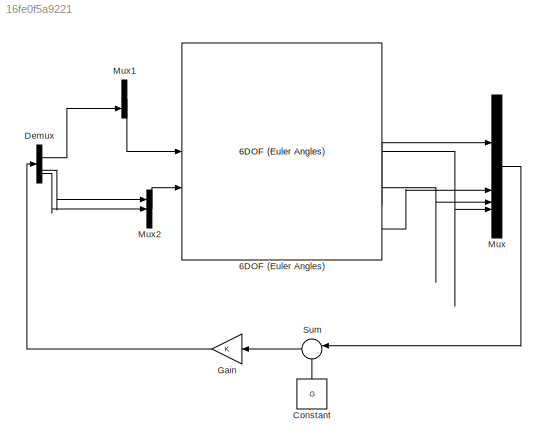
MODEL slx_16fe0f5a9221
KIND model
CONFIG AbsTol = auto
CONFIG EnableMultiTasking = off
CONFIG FixedStep = auto
CONFIG MaxStep = auto
CONFIG MinStep = auto
CONFIG RelTol = 1e-3
CONFIG SampleTimeConstraint = Unconstrained
CONFIG SolverName = VariableStepAuto
CONFIG StartTime = 0.0
CONFIG StopTime = 10.0
BLOCK [Reference] 6DOF (Euler Angles)  REF=shared6dof/6DOF (Euler Angles)
  LibrarySourceBlock = aerolib6dof2/6DOF (Euler Angles)
  SourceBlock = shared6dof/6DOF (Euler Angles)
  SourceType = 6DOF EoM (Body Axis)
BLOCK [Constant] Constant
  NameLocation = right
  Value = G
BLOCK [Demux] Demux
BLOCK [Gain] Gain
  Gain = K
  Multiplication = Matrix(K*u)
  NameLocation = top
BLOCK [Mux] Mux
  DisplayOption = bar
BLOCK [Mux] Mux1
  DisplayOption = bar
  Inputs = 3
BLOCK [Mux] Mux2
  DisplayOption = bar
  Inputs = 3
BLOCK [Sum] Sum
  Inputs = |-+
  NameLocation = top
LINE 6DOF (Euler Angles):1 -> Mux:4
LINE 6DOF (Euler Angles):2 -> Mux:3
LINE 6DOF (Euler Angles):3 -> Mux:1
LINE 6DOF (Euler Angles):6 -> Mux:2
LINE Constant:1 -> Sum:2
LINE Demux:1 -> Mux1:3
LINE Demux:2 -> Mux2:1
LINE Demux:3 -> Mux2:2
LINE Gain:1 -> Demux:1
LINE Mux1:1 -> 6DOF (Euler Angles):1
LINE Mux2:1 -> 6DOF (Euler Angles):2
LINE Mux:1 -> Sum:1
LINE Sum:1 -> Gain:1
